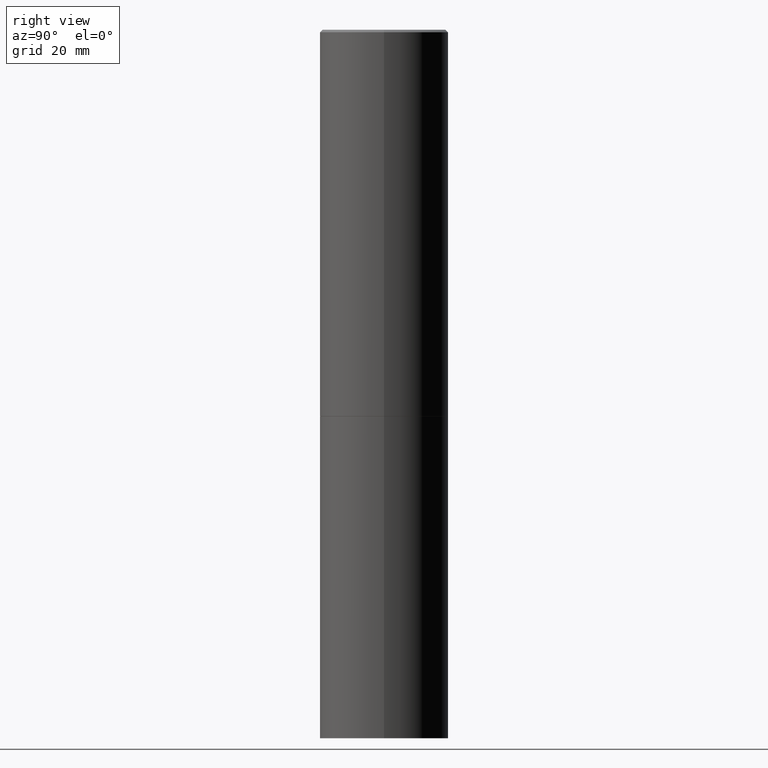
[diagram: clean part render]
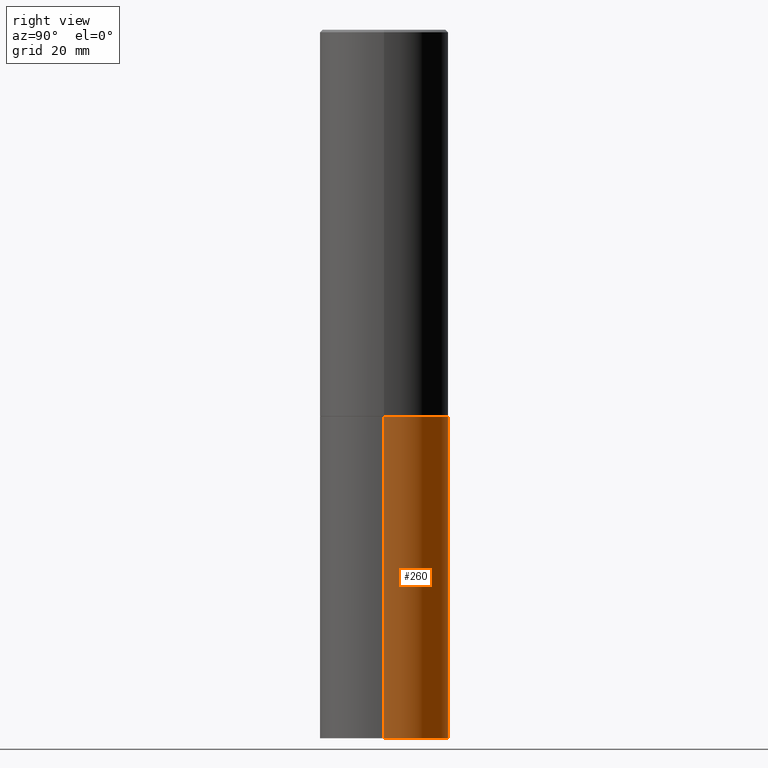
[diagram: same view with one face highlighted and labeled with its STEP entity id]
A machine part, right view. The second image highlights one B-rep face of the part: STEP entity #260.
In plain terms, the highlighted cylindrical surface (partial cylindrical patch) has radius 12.7 mm, axis along (-0, 0, 1).
Its self-contained STEP definition (entity closure, byte-faithful):
#2 = AXIS2_PLACEMENT_3D ( 'NONE', #358, #106, #195 ) ;
#6 = EDGE_CURVE ( 'NONE', #336, #277, #349, .T. ) ;
#7 = AXIS2_PLACEMENT_3D ( 'NONE', #263, #12, #270 ) ;
#12 = DIRECTION ( 'NONE',  ( -2.445468806185136597E-29, 3.491481338843145583E-15, 1.000000000000000000 ) ) ;
#14 = DIRECTION ( 'NONE',  ( 1.000000000000000000, -6.982962677686262766E-15, 0.000000000000000000 ) ) ;
#18 = ORIENTED_EDGE ( 'NONE', *, *, #119, .F. ) ;
#33 = VECTOR ( 'NONE', #262, 39.37007874015748143 ) ;
#35 = EDGE_CURVE ( 'NONE', #335, #277, #233, .T. ) ;
#40 = CYLINDRICAL_SURFACE ( 'NONE', #7, 0.5000000000000000000 ) ;
#81 = VERTEX_POINT ( 'NONE', #189 ) ;
#84 = CARTESIAN_POINT ( 'NONE',  ( 0.5000000000000000000, -1.396592535537256813E-14, -2.999999999999999556 ) ) ;
#95 = CARTESIAN_POINT ( 'NONE',  ( 1.345007843401824904E-28, -1.920314736363729972E-14, -5.500000000000000000 ) ) ;
#103 = LINE ( 'NONE', #359, #278 ) ;
#106 = DIRECTION ( 'NONE',  ( -2.445468806185136597E-29, 3.491481338843145583E-15, 1.000000000000000000 ) ) ;
#119 = EDGE_CURVE ( 'NONE', #81, #336, #103, .T. ) ;
#150 = ORIENTED_EDGE ( 'NONE', *, *, #6, .F. ) ;
#162 = EDGE_CURVE ( 'NONE', #81, #335, #235, .T. ) ;
#187 = FACE_OUTER_BOUND ( 'NONE', #281, .T. ) ;
#189 = CARTESIAN_POINT ( 'NONE',  ( 0.5000000000000000000, -2.269462870248043307E-14, -5.500000000000000000 ) ) ;
#195 = DIRECTION ( 'NONE',  ( 1.000000000000000000, -6.982962677686266711E-15, 0.000000000000000000 ) ) ;
#204 = CARTESIAN_POINT ( 'NONE',  ( -0.5000000000000000000, 3.552713678800500929E-15, -2.459467545127452891E-29 ) ) ;
#212 = DIRECTION ( 'NONE',  ( -2.445468806185136597E-29, 3.491481338843145583E-15, 1.000000000000000000 ) ) ;
#221 = ORIENTED_EDGE ( 'NONE', *, *, #162, .T. ) ;
#224 = ORIENTED_EDGE ( 'NONE', *, *, #35, .T. ) ;
#227 = DIRECTION ( 'NONE',  ( -2.445468806185136877E-29, 3.491481338843145188E-15, 1.000000000000000000 ) ) ;
#233 = LINE ( 'NONE', #204, #33 ) ;
#235 = CIRCLE ( 'NONE', #282, 0.5000000000000000000 ) ;
#260 = ADVANCED_FACE ( 'NONE', ( #187 ), #40, .T. ) ;
#262 = DIRECTION ( 'NONE',  ( -2.445468806185136877E-29, 3.491481338843145188E-15, 1.000000000000000000 ) ) ;
#263 = CARTESIAN_POINT ( 'NONE',  ( 0.000000000000000000, 0.000000000000000000, 0.000000000000000000 ) ) ;
#270 = DIRECTION ( 'NONE',  ( 1.000000000000000000, -6.982962677686266711E-15, 4.876176775795935793E-29 ) ) ;
#277 = VERTEX_POINT ( 'NONE', #351 ) ;
#278 = VECTOR ( 'NONE', #227, 39.37007874015748143 ) ;
#281 = EDGE_LOOP ( 'NONE', ( #221, #224, #150, #18 ) ) ;
#282 = AXIS2_PLACEMENT_3D ( 'NONE', #95, #212, #14 ) ;
#331 = CARTESIAN_POINT ( 'NONE',  ( -0.5000000000000000000, -1.128608201128286632E-14, -5.500000000000000000 ) ) ;
#335 = VERTEX_POINT ( 'NONE', #331 ) ;
#336 = VERTEX_POINT ( 'NONE', #84 ) ;
#349 = CIRCLE ( 'NONE', #2, 0.5000000000000000000 ) ;
#351 = CARTESIAN_POINT ( 'NONE',  ( -0.5000000000000000000, -1.128608201128286632E-14, -2.999999999999999556 ) ) ;
#358 = CARTESIAN_POINT ( 'NONE',  ( 7.336406418555408669E-29, -1.047444401652943478E-14, -2.999999999999999556 ) ) ;
#359 = CARTESIAN_POINT ( 'NONE',  ( 0.5000000000000000000, -3.491481338843133355E-15, 2.438088387897967896E-29 ) ) ;